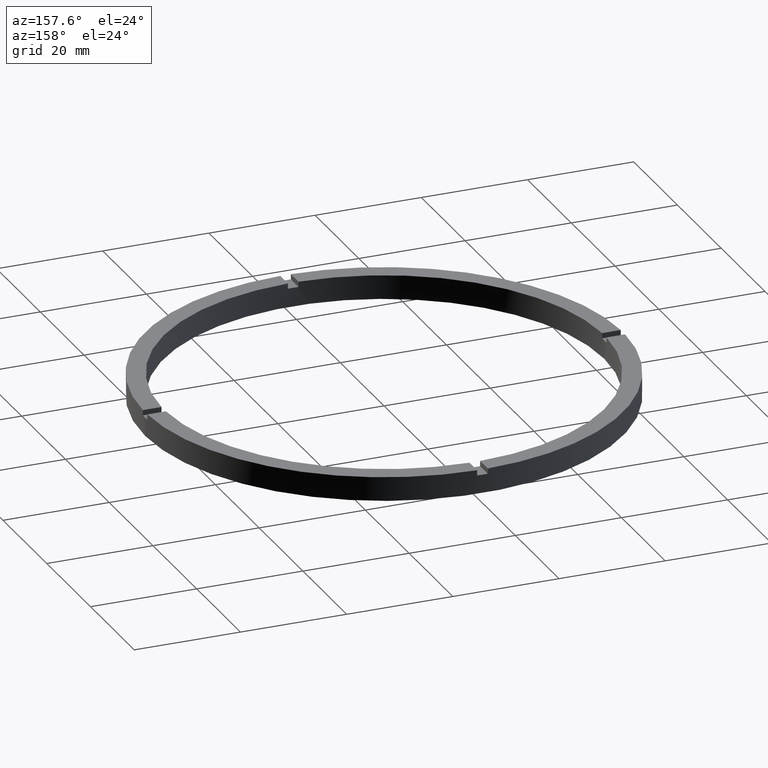
[diagram: clean part render]
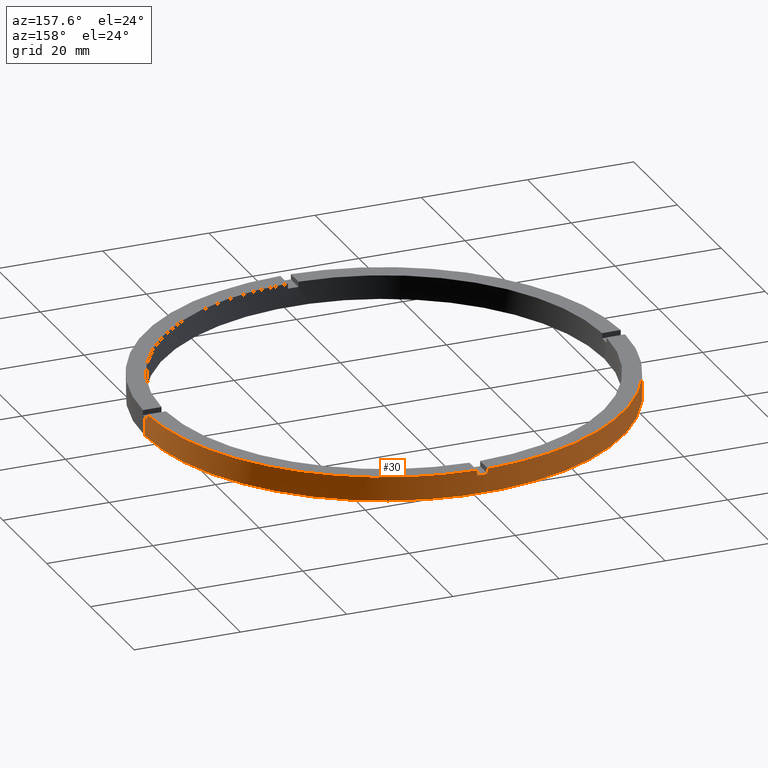
[diagram: same view with one face highlighted and labeled with its STEP entity id]
A machine part, auxiliary view. The second image highlights one B-rep face of the part: STEP entity #30.
In plain terms, the highlighted cylindrical surface (partial cylindrical patch) has radius 45 mm, axis along (-0, -0, -1).
Its self-contained STEP definition (entity closure, byte-faithful):
#12 = LINE ( 'NONE', #255, #293 ) ;
#26 = DIRECTION ( 'NONE',  ( 1.000000000000000000, 0.000000000000000000, 0.000000000000000000 ) ) ;
#30 = ADVANCED_FACE ( 'NONE', ( #635 ), #119, .T. ) ;
#47 = CARTESIAN_POINT ( 'NONE',  ( -44.98888751680797071, 0.9999999999999703570, 4.500000000000000000 ) ) ;
#51 = CARTESIAN_POINT ( 'NONE',  ( 0.000000000000000000, 0.000000000000000000, 4.500000000000000000 ) ) ;
#60 = EDGE_CURVE ( 'NONE', #186, #653, #117, .T. ) ;
#79 = DIRECTION ( 'NONE',  ( 0.000000000000000000, -0.000000000000000000, 1.000000000000000000 ) ) ;
#80 = CARTESIAN_POINT ( 'NONE',  ( 45.00000000000000711, 5.510910596163090344E-15, 4.500000000000000000 ) ) ;
#82 = EDGE_CURVE ( 'NONE', #438, #723, #150, .T. ) ;
#85 = CARTESIAN_POINT ( 'NONE',  ( 0.9999999999999737987, 44.98888751680797071, 4.500000000000000000 ) ) ;
#91 = CARTESIAN_POINT ( 'NONE',  ( 0.9999999999999737987, 44.98888751680797071, 4.500000000000000000 ) ) ;
#101 = DIRECTION ( 'NONE',  ( -0.000000000000000000, -0.000000000000000000, -1.000000000000000000 ) ) ;
#114 = EDGE_CURVE ( 'NONE', #653, #739, #152, .T. ) ;
#117 = CIRCLE ( 'NONE', #596, 45.00000000000000711 ) ;
#119 = CYLINDRICAL_SURFACE ( 'NONE', #411, 45.00000000000000711 ) ;
#122 = CARTESIAN_POINT ( 'NONE',  ( 0.9999999999999737987, 44.98888751680797071, 3.499999999999999556 ) ) ;
#130 = DIRECTION ( 'NONE',  ( 0.000000000000000000, 0.000000000000000000, 1.000000000000000000 ) ) ;
#132 = LINE ( 'NONE', #80, #649 ) ;
#137 = VECTOR ( 'NONE', #688, 1000.000000000000000 ) ;
#150 = LINE ( 'NONE', #578, #654 ) ;
#152 = LINE ( 'NONE', #388, #137 ) ;
#154 = DIRECTION ( 'NONE',  ( -0.000000000000000000, -0.000000000000000000, -1.000000000000000000 ) ) ;
#159 = EDGE_CURVE ( 'NONE', #470, #239, #400, .T. ) ;
#170 = AXIS2_PLACEMENT_3D ( 'NONE', #51, #574, #500 ) ;
#186 = VERTEX_POINT ( 'NONE', #302 ) ;
#189 = ORIENTED_EDGE ( 'NONE', *, *, #60, .F. ) ;
#199 = ORIENTED_EDGE ( 'NONE', *, *, #203, .T. ) ;
#201 = CIRCLE ( 'NONE', #339, 45.00000000000000711 ) ;
#203 = EDGE_CURVE ( 'NONE', #236, #648, #132, .T. ) ;
#206 = VERTEX_POINT ( 'NONE', #767 ) ;
#216 = ORIENTED_EDGE ( 'NONE', *, *, #82, .T. ) ;
#220 = ORIENTED_EDGE ( 'NONE', *, *, #555, .F. ) ;
#222 = VERTEX_POINT ( 'NONE', #47 ) ;
#236 = VERTEX_POINT ( 'NONE', #530 ) ;
#239 = VERTEX_POINT ( 'NONE', #85 ) ;
#253 = CARTESIAN_POINT ( 'NONE',  ( 0.000000000000000000, 0.000000000000000000, 3.499999999999999556 ) ) ;
#254 = DIRECTION ( 'NONE',  ( 0.000000000000000000, 0.000000000000000000, 1.000000000000000000 ) ) ;
#255 = CARTESIAN_POINT ( 'NONE',  ( -44.98888751680797071, 0.9999999999999703570, 4.500000000000000000 ) ) ;
#259 = AXIS2_PLACEMENT_3D ( 'NONE', #253, #79, #325 ) ;
#260 = CARTESIAN_POINT ( 'NONE',  ( 45.00000000000000711, 5.510910596163090344E-15, 0.000000000000000000 ) ) ;
#264 = EDGE_CURVE ( 'NONE', #697, #239, #693, .T. ) ;
#274 = CIRCLE ( 'NONE', #259, 45.00000000000000711 ) ;
#283 = CIRCLE ( 'NONE', #734, 45.00000000000000711 ) ;
#293 = VECTOR ( 'NONE', #306, 1000.000000000000000 ) ;
#297 = CARTESIAN_POINT ( 'NONE',  ( -1.000000000000026201, 44.98888751680797071, 4.500000000000000000 ) ) ;
#302 = CARTESIAN_POINT ( 'NONE',  ( -44.98888751680797071, 0.9999999999999703570, 3.499999999999999556 ) ) ;
#306 = DIRECTION ( 'NONE',  ( 0.000000000000000000, 0.000000000000000000, 1.000000000000000000 ) ) ;
#311 = CARTESIAN_POINT ( 'NONE',  ( -45.00000000000000711, 0.000000000000000000, 0.000000000000000000 ) ) ;
#313 = DIRECTION ( 'NONE',  ( 1.000000000000000000, 0.000000000000000000, 0.000000000000000000 ) ) ;
#325 = DIRECTION ( 'NONE',  ( 1.000000000000000000, 0.000000000000000000, 0.000000000000000000 ) ) ;
#332 = EDGE_CURVE ( 'NONE', #438, #222, #201, .T. ) ;
#339 = AXIS2_PLACEMENT_3D ( 'NONE', #553, #254, #313 ) ;
#381 = VECTOR ( 'NONE', #621, 1000.000000000000000 ) ;
#387 = ORIENTED_EDGE ( 'NONE', *, *, #114, .F. ) ;
#388 = CARTESIAN_POINT ( 'NONE',  ( -45.00000000000000711, 0.000000000000000000, 4.500000000000000000 ) ) ;
#392 = CARTESIAN_POINT ( 'NONE',  ( -1.000000000000026201, 44.98888751680797071, 3.499999999999999556 ) ) ;
#400 = LINE ( 'NONE', #91, #381 ) ;
#407 = CARTESIAN_POINT ( 'NONE',  ( -45.00000000000000711, 0.000000000000000000, 3.499999999999999556 ) ) ;
#411 = AXIS2_PLACEMENT_3D ( 'NONE', #507, #101, #729 ) ;
#424 = CARTESIAN_POINT ( 'NONE',  ( 44.98888751680797782, 0.9999999999998439026, 4.500000000000000000 ) ) ;
#438 = VERTEX_POINT ( 'NONE', #297 ) ;
#456 = DIRECTION ( 'NONE',  ( -0.000000000000000000, -0.000000000000000000, -1.000000000000000000 ) ) ;
#457 = ORIENTED_EDGE ( 'NONE', *, *, #614, .F. ) ;
#466 = ORIENTED_EDGE ( 'NONE', *, *, #647, .T. ) ;
#470 = VERTEX_POINT ( 'NONE', #122 ) ;
#500 = DIRECTION ( 'NONE',  ( 1.000000000000000000, 0.000000000000000000, 0.000000000000000000 ) ) ;
#503 = EDGE_CURVE ( 'NONE', #697, #206, #770, .T. ) ;
#507 = CARTESIAN_POINT ( 'NONE',  ( 0.000000000000000000, 0.000000000000000000, 4.500000000000000000 ) ) ;
#522 = VECTOR ( 'NONE', #154, 1000.000000000000000 ) ;
#524 = EDGE_CURVE ( 'NONE', #648, #739, #283, .T. ) ;
#530 = CARTESIAN_POINT ( 'NONE',  ( 45.00000000000000711, 5.510910596163090344E-15, 3.499999999999999556 ) ) ;
#543 = DIRECTION ( 'NONE',  ( -0.000000000000000000, -0.000000000000000000, -1.000000000000000000 ) ) ;
#545 = DIRECTION ( 'NONE',  ( 0.000000000000000000, 0.000000000000000000, 1.000000000000000000 ) ) ;
#553 = CARTESIAN_POINT ( 'NONE',  ( 0.000000000000000000, 0.000000000000000000, 4.500000000000000000 ) ) ;
#555 = EDGE_CURVE ( 'NONE', #470, #723, #274, .T. ) ;
#574 = DIRECTION ( 'NONE',  ( 0.000000000000000000, 0.000000000000000000, 1.000000000000000000 ) ) ;
#578 = CARTESIAN_POINT ( 'NONE',  ( -1.000000000000026201, 44.98888751680797071, 4.500000000000000000 ) ) ;
#596 = AXIS2_PLACEMENT_3D ( 'NONE', #658, #745, #26 ) ;
#613 = DIRECTION ( 'NONE',  ( 1.000000000000000000, 0.000000000000000000, 0.000000000000000000 ) ) ;
#614 = EDGE_CURVE ( 'NONE', #236, #206, #776, .T. ) ;
#621 = DIRECTION ( 'NONE',  ( 0.000000000000000000, 0.000000000000000000, 1.000000000000000000 ) ) ;
#623 = CARTESIAN_POINT ( 'NONE',  ( 44.98888751680797782, 0.9999999999998439026, 4.500000000000000000 ) ) ;
#625 = ORIENTED_EDGE ( 'NONE', *, *, #159, .T. ) ;
#635 = FACE_OUTER_BOUND ( 'NONE', #699, .T. ) ;
#638 = ORIENTED_EDGE ( 'NONE', *, *, #524, .T. ) ;
#644 = AXIS2_PLACEMENT_3D ( 'NONE', #764, #545, #681 ) ;
#647 = EDGE_CURVE ( 'NONE', #186, #222, #12, .T. ) ;
#648 = VERTEX_POINT ( 'NONE', #260 ) ;
#649 = VECTOR ( 'NONE', #543, 1000.000000000000000 ) ;
#653 = VERTEX_POINT ( 'NONE', #407 ) ;
#654 = VECTOR ( 'NONE', #456, 1000.000000000000000 ) ;
#658 = CARTESIAN_POINT ( 'NONE',  ( 0.000000000000000000, 0.000000000000000000, 3.499999999999999556 ) ) ;
#681 = DIRECTION ( 'NONE',  ( 1.000000000000000000, 0.000000000000000000, 0.000000000000000000 ) ) ;
#688 = DIRECTION ( 'NONE',  ( -0.000000000000000000, -0.000000000000000000, -1.000000000000000000 ) ) ;
#690 = ORIENTED_EDGE ( 'NONE', *, *, #264, .F. ) ;
#693 = CIRCLE ( 'NONE', #170, 45.00000000000000711 ) ;
#697 = VERTEX_POINT ( 'NONE', #623 ) ;
#699 = EDGE_LOOP ( 'NONE', ( #457, #199, #638, #387, #189, #466, #722, #216, #220, #625, #690, #749 ) ) ;
#722 = ORIENTED_EDGE ( 'NONE', *, *, #332, .F. ) ;
#723 = VERTEX_POINT ( 'NONE', #392 ) ;
#729 = DIRECTION ( 'NONE',  ( -1.000000000000000000, 0.000000000000000000, 0.000000000000000000 ) ) ;
#734 = AXIS2_PLACEMENT_3D ( 'NONE', #761, #130, #613 ) ;
#739 = VERTEX_POINT ( 'NONE', #311 ) ;
#745 = DIRECTION ( 'NONE',  ( 0.000000000000000000, 0.000000000000000000, 1.000000000000000000 ) ) ;
#749 = ORIENTED_EDGE ( 'NONE', *, *, #503, .T. ) ;
#761 = CARTESIAN_POINT ( 'NONE',  ( 0.000000000000000000, 0.000000000000000000, 0.000000000000000000 ) ) ;
#764 = CARTESIAN_POINT ( 'NONE',  ( 0.000000000000000000, 0.000000000000000000, 3.499999999999999556 ) ) ;
#767 = CARTESIAN_POINT ( 'NONE',  ( 44.98888751680797782, 0.9999999999998439026, 3.499999999999999556 ) ) ;
#770 = LINE ( 'NONE', #424, #522 ) ;
#776 = CIRCLE ( 'NONE', #644, 45.00000000000000711 ) ;